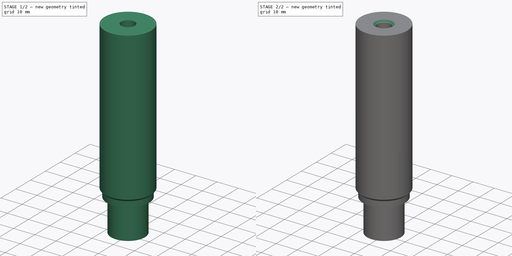
[diagram: build sequence overview — one tinted view per stage of 2, left to right]
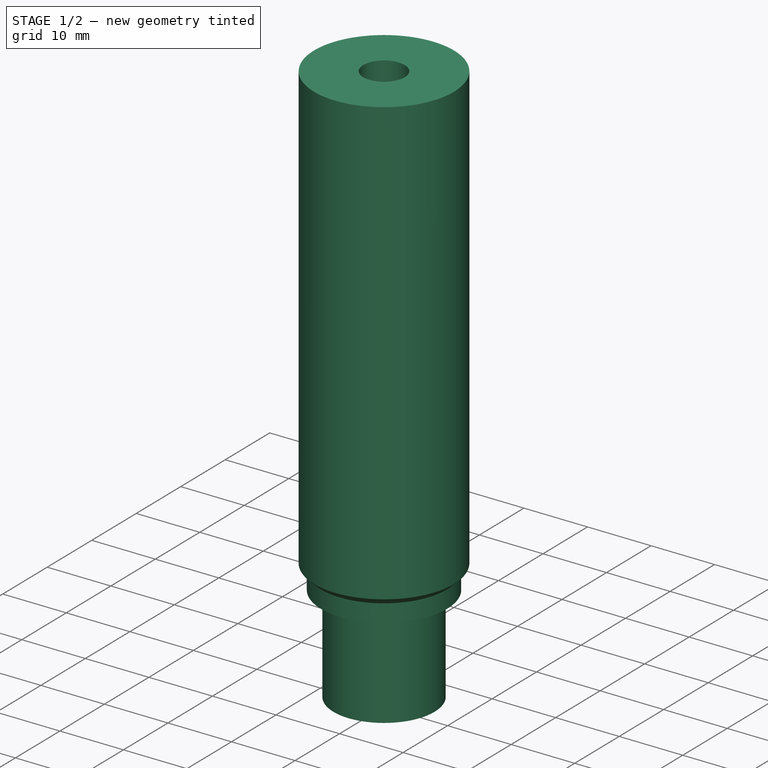
[diagram: stage 1 of 2 — iso view after this stage's code; geometry added in this stage tinted green]
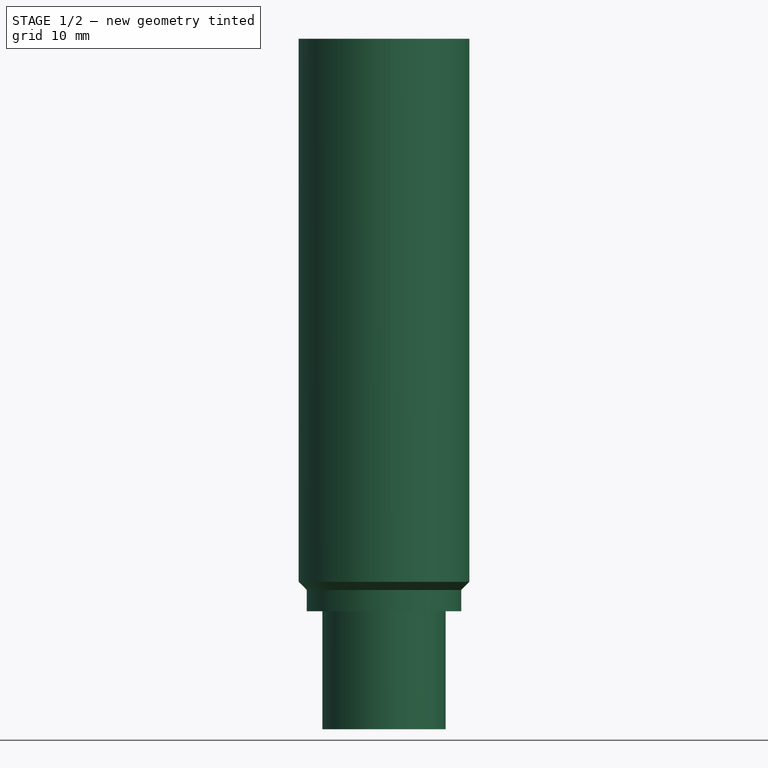
[diagram: stage 1 of 2 — front view after this stage's code; geometry added in this stage tinted green]
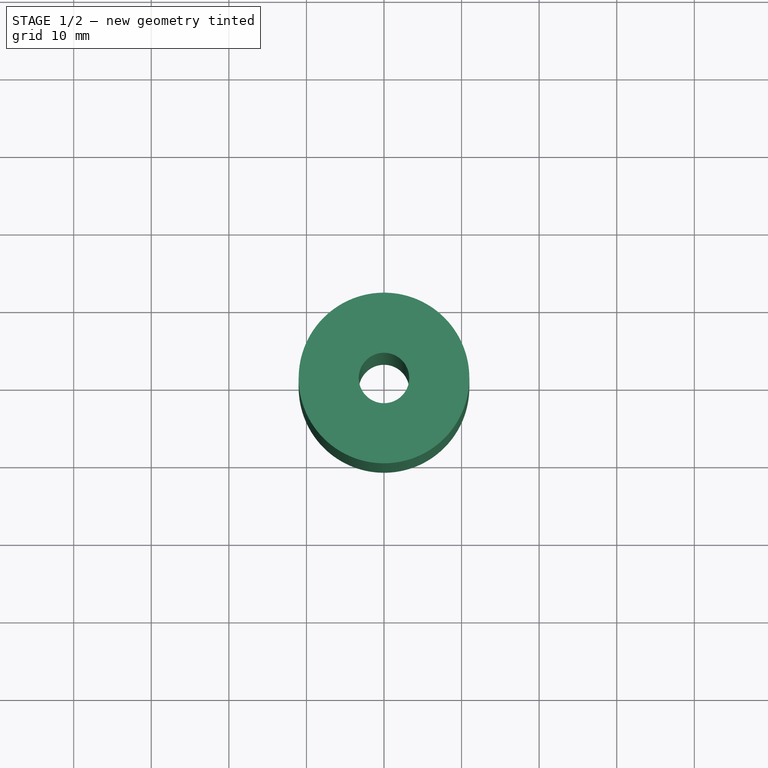
[diagram: stage 1 of 2 — top view after this stage's code; geometry added in this stage tinted green]
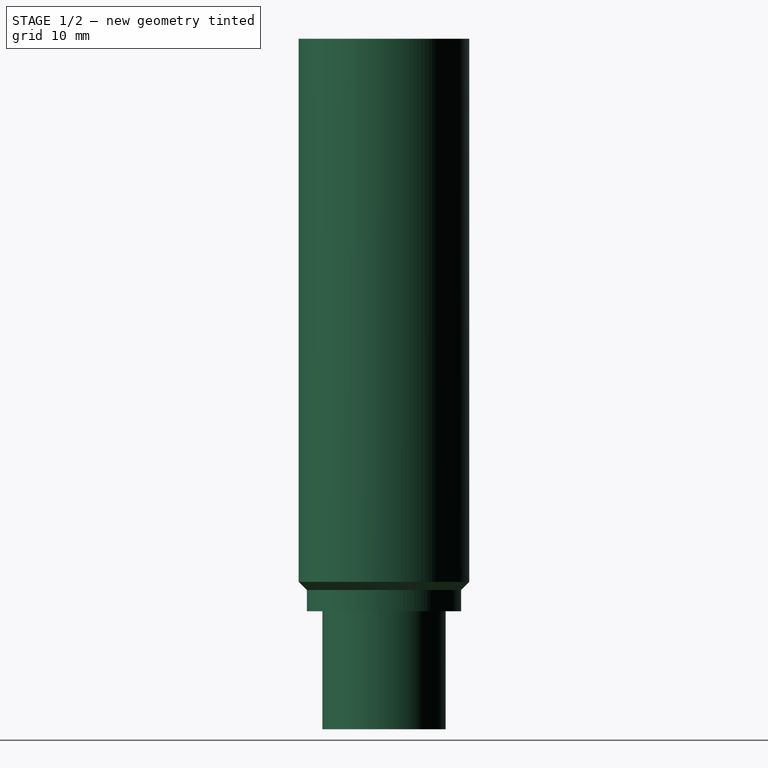
[diagram: stage 1 of 2 — right view after this stage's code; geometry added in this stage tinted green]
FCSTD DOCUMENT  (FreeCAD 0.20R27319 (Git))
Label: StopORing
License: All rights reserved
LicenseURL: http://en.wikipedia.org/wiki/All_rights_reserved
objects: Sketcher::SketchObject×1, PartDesign::Revolution×1, PartDesign::Chamfer×1, PartDesign::Body×1
note: 6 computed .brp shape members not serialized (recipe doc carries the construction recipe); baked Part::Feature solids carry a one-line shape summary decoded from their .brp
EXTERNAL_REF file=SharedDimensions.FCStd obj=Spreadsheet

FEATURE [Sketcher::SketchObject] Sketch
  FullyConstrained = true
  MapMode = 5
  Placement = pos=(0,0,0) rot=(1,0,0;1.5708rad)
  Support = -> [XZ_Plane]
  expr: Constraints[17] = (SharedDimensions#Spreadsheet.HoleDiameter - SharedDimensions#Spreadsheet.HoleClearance) / 2
  expr: Constraints[18] = SharedDimensions#Spreadsheet.BenchThickness / 5
  expr: Constraints[19] = <<SharedDimensions>>#Spreadsheet.BenchThickness
  expr: Constraints[21] = SharedDimensions#Spreadsheet.ORingThickness
  expr: Constraints[22] = (SharedDimensions#Spreadsheet.BoltDiameter + SharedDimensions#Spreadsheet.BoltClearance) / 2
  expr: Constraints[5] = SharedDimensions#Spreadsheet.HoleDiameter / 2 + 1
  expr: Constraints[6] = SharedDimensions#Spreadsheet.LongStopHeight
  sketch-geometry (8):
    g0: LineSegment StartX=3.25 StartY=70 StartZ=0 EndX=11 EndY=70 EndZ=0
    g1: LineSegment StartX=11 StartY=70 StartZ=0 EndX=11 EndY=0 EndZ=0
    g2: LineSegment StartX=7.95 StartY=-19 StartZ=0 EndX=3.25 EndY=-19 EndZ=0
    g3: LineSegment StartX=3.25 StartY=-19 StartZ=0 EndX=3.25 EndY=70 EndZ=0
    g4: LineSegment StartX=11 StartY=0 StartZ=0 EndX=9.95 EndY=-1.05 EndZ=0
    g5: LineSegment StartX=9.95 StartY=-1.05 StartZ=0 EndX=9.95 EndY=-3.8 EndZ=0
    g6: LineSegment StartX=9.95 StartY=-3.8 StartZ=0 EndX=7.95 EndY=-3.8 EndZ=0
    g7: LineSegment StartX=7.95 StartY=-3.8 StartZ=0 EndX=7.95 EndY=-19 EndZ=0
  constraints (24):
    c: Coincident(g0,g1)
    c: Horizontal(g0)
    c: Horizontal(g2)
    c: Vertical(g1)
    c: Vertical(g3)
    c: Distance(g0,g-2) = 11
    c: Distance(g0,g-1) = 70
    c: Coincident(g4,g5)
    c: Vertical(g5)
    c: Coincident(g1,g4)
    c: PointOnObject(g1,g-1)
    c: Angle(g4,g1,g1) = 0.785398
    c: Horizontal(g6)
    c: Coincident(g6,g7)
    c: Vertical(g7)
    c: Coincident(g5,g6)
    c: Coincident(g2,g7)
    c: DistanceX(g-1,g5) = 9.95
    c: DistanceY(g5,g-1) = 3.8
    c: DistanceY(g2,g-1) = 19
    c: Coincident(g3,g2)
    c: DistanceX(g2,g5) = 2
    c: DistanceX(g-1,g2) = 3.25
    c: Coincident(g3,g0)
FEATURE [PartDesign::Revolution] Revolution
  Angle = 360
  Axis = (0,-2e-16,1)
  Base = (0,0,0)
  Placement = pos=(0,0,0) rot=(1,0,0;1.5708rad)
  Profile = -> Sketch
  ReferenceAxis = -> Sketch [V_Axis]
  Reversed = true
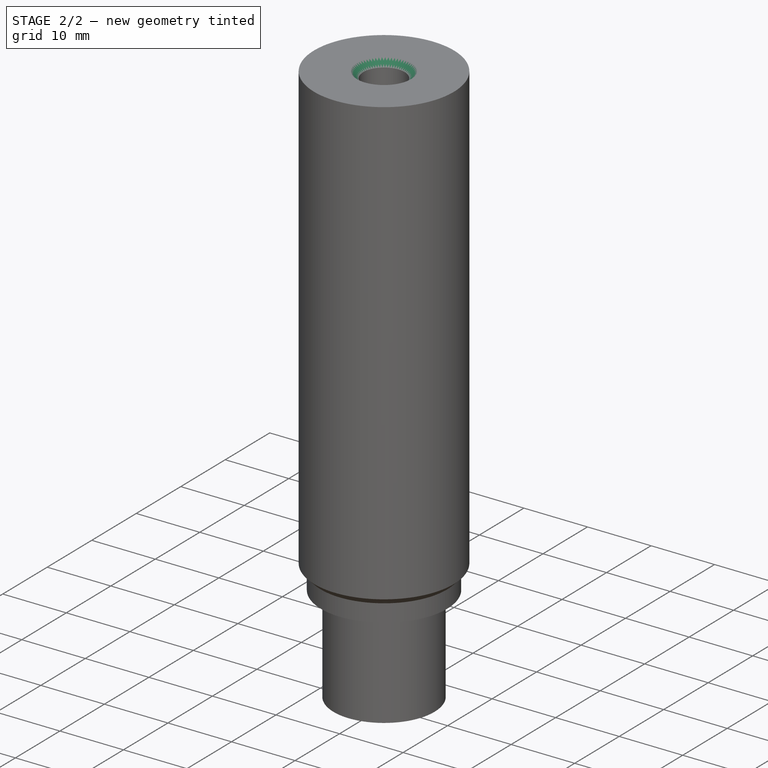
[diagram: stage 2 of 2 — iso view after this stage's code; geometry added in this stage tinted green]
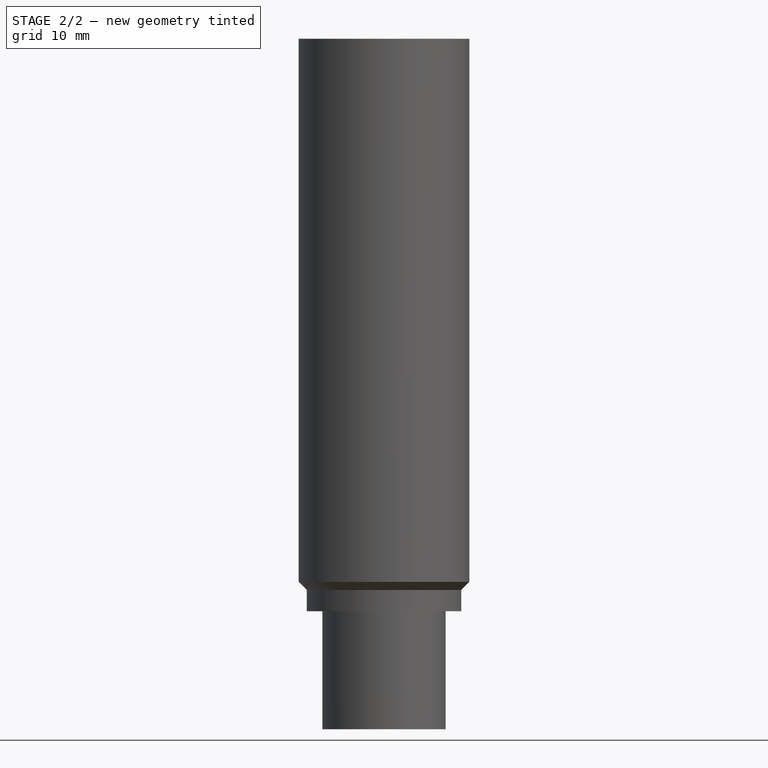
[diagram: stage 2 of 2 — front view after this stage's code; geometry added in this stage tinted green]
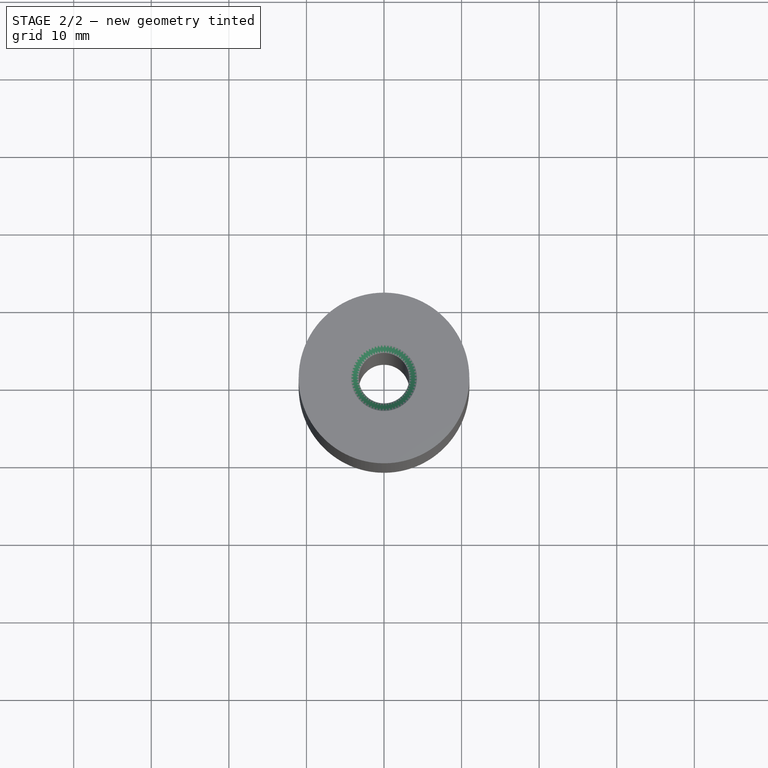
[diagram: stage 2 of 2 — top view after this stage's code; geometry added in this stage tinted green]
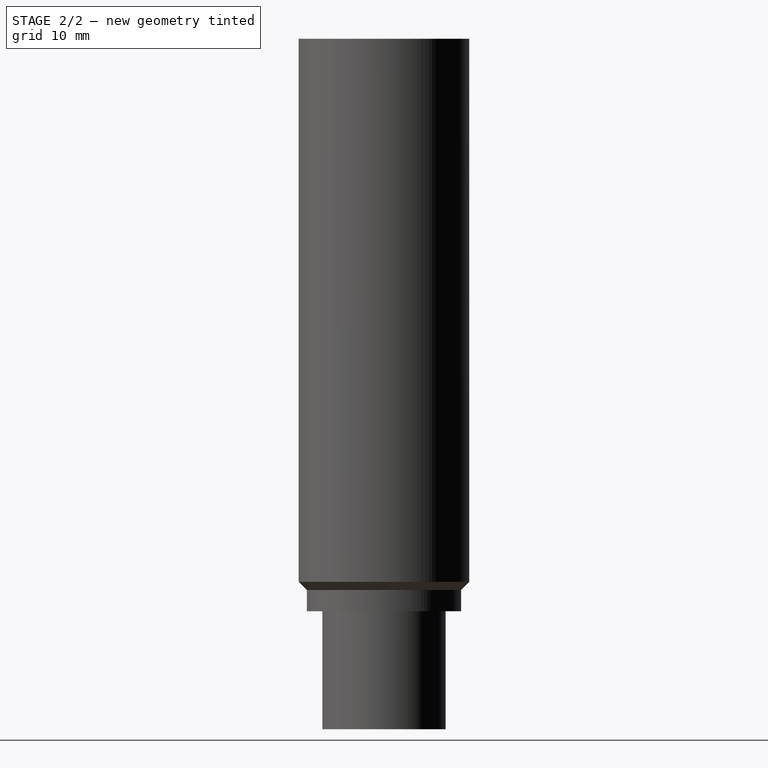
[diagram: stage 2 of 2 — right view after this stage's code; geometry added in this stage tinted green]
FEATURE [PartDesign::Chamfer] Chamfer
  Angle = 45
  Base = -> Revolution [Edge1]
  BaseFeature = -> Revolution
  ChamferType = 0
  FlipDirection = false
  Placement = pos=(0,0,0) rot=(1,0,0;1.5708rad)
  Size = 1
  Size2 = 1
  SupportTransform = false
FEATURE [PartDesign::Body] Body
  Group = -> [Sketch,Revolution,Chamfer]
  Origin = -> Origin
  Tip = -> Chamfer
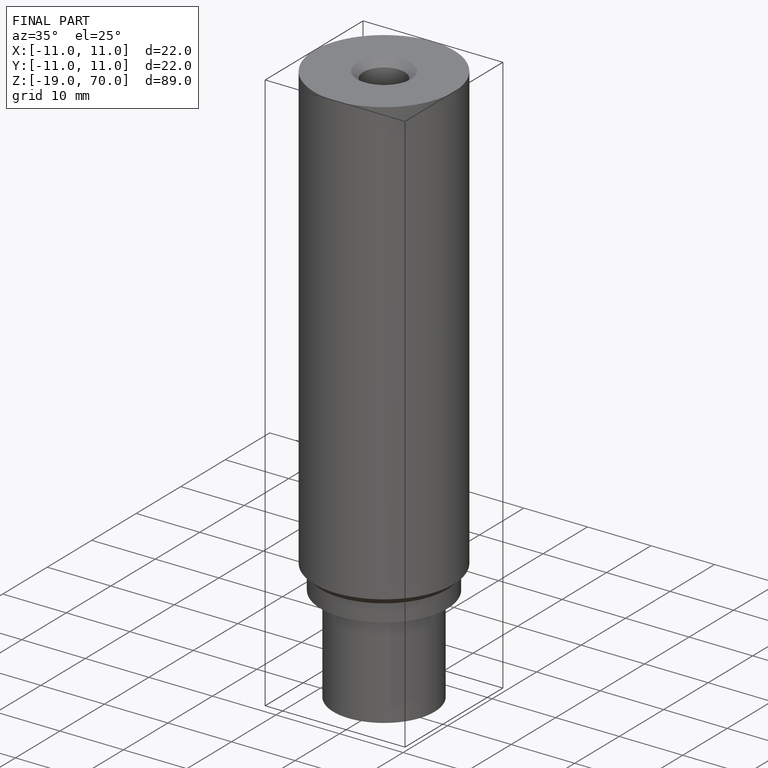
[diagram: finished part — iso view with bounding-box wireframe]
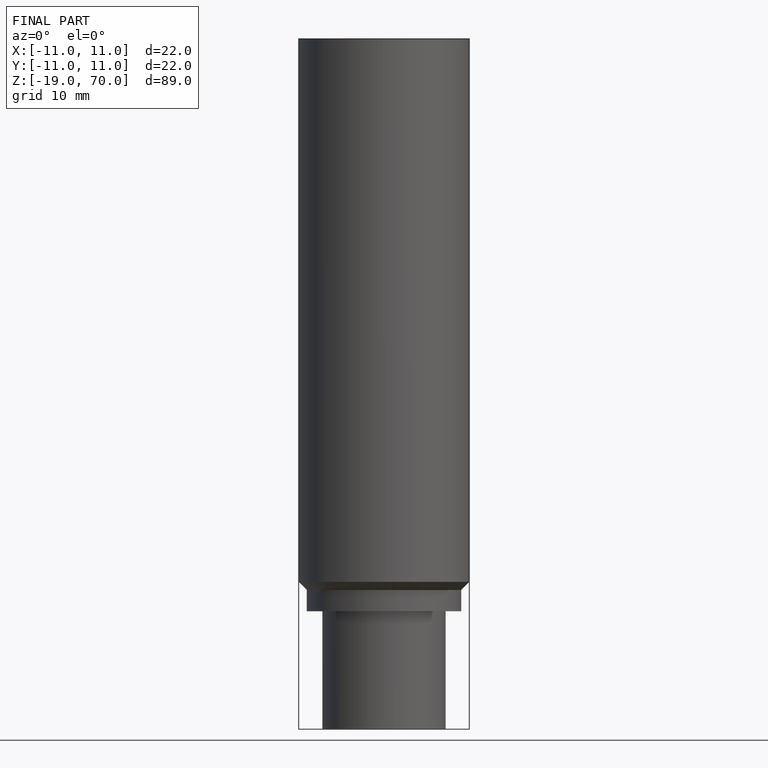
[diagram: finished part — front view with bounding-box wireframe]
